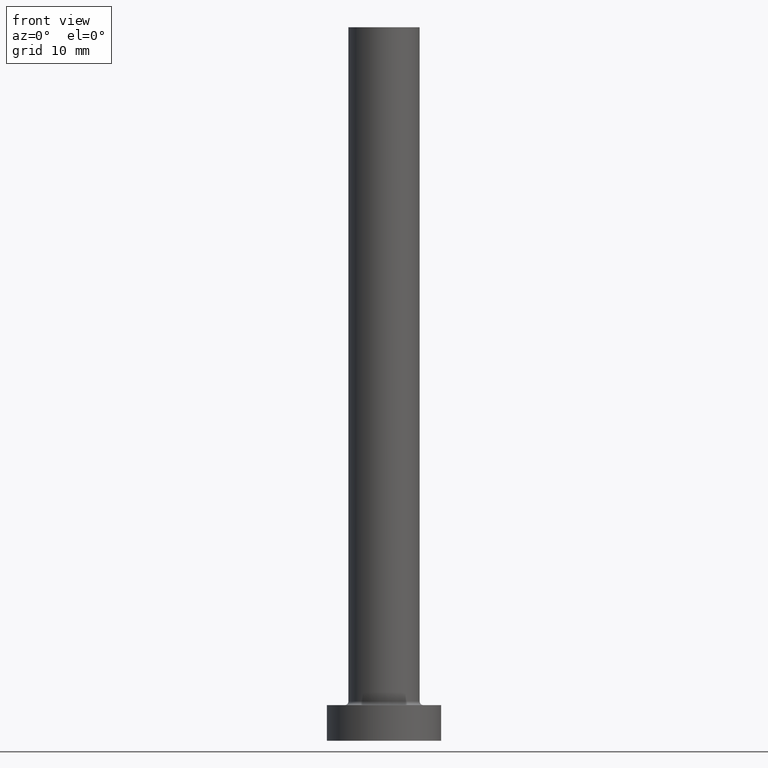
[diagram: clean part render]
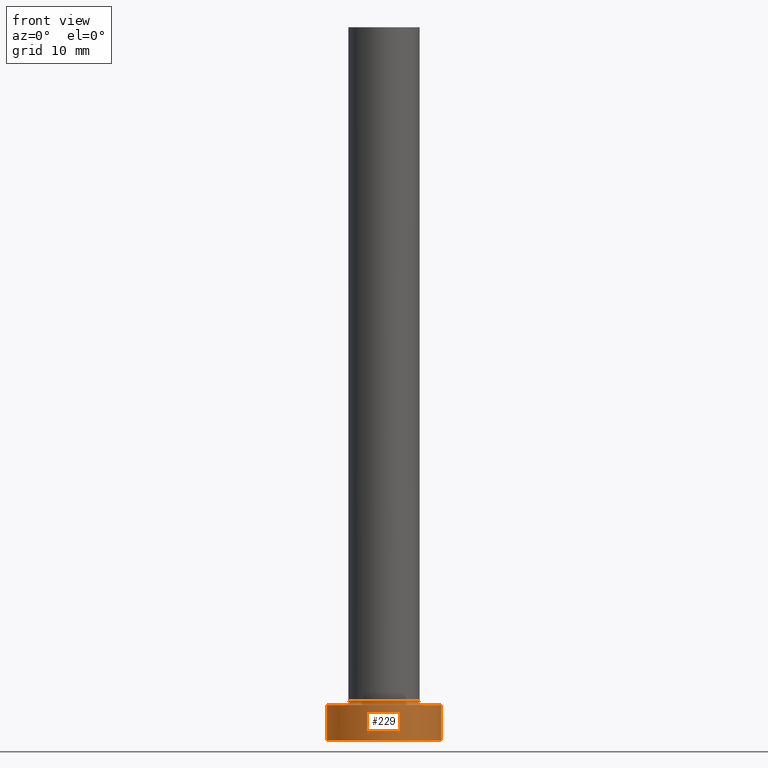
[diagram: same view with one face highlighted and labeled with its STEP entity id]
A machine part, front view. The second image highlights one B-rep face of the part: STEP entity #229.
In plain terms, the highlighted cylindrical surface (partial cylindrical patch) has radius 8 mm, axis along (-0, -0, -1).
Its self-contained STEP definition (entity closure, byte-faithful):
#8 = DIRECTION ( 'NONE',  ( 0.000000000000000000, 0.000000000000000000, 1.000000000000000000 ) ) ;
#26 = DIRECTION ( 'NONE',  ( -0.000000000000000000, -0.000000000000000000, -1.000000000000000000 ) ) ;
#38 = VECTOR ( 'NONE', #26, 1000.000000000000000 ) ;
#39 = VERTEX_POINT ( 'NONE', #262 ) ;
#41 = AXIS2_PLACEMENT_3D ( 'NONE', #247, #8, #329 ) ;
#43 = CARTESIAN_POINT ( 'NONE',  ( 8.000000000000000000, 9.797174393178825657E-16, 0.000000000000000000 ) ) ;
#67 = EDGE_CURVE ( 'NONE', #454, #434, #92, .T. ) ;
#75 = ORIENTED_EDGE ( 'NONE', *, *, #392, .T. ) ;
#87 = CARTESIAN_POINT ( 'NONE',  ( 8.000000000000000000, 9.797174393178825657E-16, 5.000000000000000000 ) ) ;
#92 = LINE ( 'NONE', #196, #38 ) ;
#104 = VECTOR ( 'NONE', #280, 1000.000000000000000 ) ;
#105 = DIRECTION ( 'NONE',  ( -0.000000000000000000, -0.000000000000000000, -1.000000000000000000 ) ) ;
#118 = CIRCLE ( 'NONE', #217, 8.000000000000000000 ) ;
#142 = DIRECTION ( 'NONE',  ( -1.000000000000000000, 0.000000000000000000, 0.000000000000000000 ) ) ;
#175 = CARTESIAN_POINT ( 'NONE',  ( 0.000000000000000000, 0.000000000000000000, 0.000000000000000000 ) ) ;
#196 = CARTESIAN_POINT ( 'NONE',  ( 8.000000000000000000, 9.797174393178825657E-16, 5.000000000000000000 ) ) ;
#217 = AXIS2_PLACEMENT_3D ( 'NONE', #175, #285, #420 ) ;
#219 = EDGE_CURVE ( 'NONE', #39, #434, #118, .T. ) ;
#229 = ADVANCED_FACE ( 'NONE', ( #461 ), #352, .T. ) ;
#245 = EDGE_CURVE ( 'NONE', #403, #454, #328, .T. ) ;
#247 = CARTESIAN_POINT ( 'NONE',  ( 0.000000000000000000, 0.000000000000000000, 5.000000000000000000 ) ) ;
#262 = CARTESIAN_POINT ( 'NONE',  ( -8.000000000000000000, 0.000000000000000000, 0.000000000000000000 ) ) ;
#266 = ORIENTED_EDGE ( 'NONE', *, *, #245, .F. ) ;
#280 = DIRECTION ( 'NONE',  ( -0.000000000000000000, -0.000000000000000000, -1.000000000000000000 ) ) ;
#285 = DIRECTION ( 'NONE',  ( 0.000000000000000000, 0.000000000000000000, 1.000000000000000000 ) ) ;
#318 = CARTESIAN_POINT ( 'NONE',  ( -8.000000000000000000, 0.000000000000000000, 5.000000000000000000 ) ) ;
#319 = CARTESIAN_POINT ( 'NONE',  ( -8.000000000000000000, 0.000000000000000000, 5.000000000000000000 ) ) ;
#323 = CARTESIAN_POINT ( 'NONE',  ( 0.000000000000000000, 0.000000000000000000, 5.000000000000000000 ) ) ;
#328 = CIRCLE ( 'NONE', #41, 8.000000000000000000 ) ;
#329 = DIRECTION ( 'NONE',  ( 1.000000000000000000, 0.000000000000000000, 0.000000000000000000 ) ) ;
#331 = ORIENTED_EDGE ( 'NONE', *, *, #67, .F. ) ;
#344 = ORIENTED_EDGE ( 'NONE', *, *, #219, .T. ) ;
#352 = CYLINDRICAL_SURFACE ( 'NONE', #425, 8.000000000000000000 ) ;
#388 = LINE ( 'NONE', #318, #104 ) ;
#390 = EDGE_LOOP ( 'NONE', ( #331, #266, #75, #344 ) ) ;
#392 = EDGE_CURVE ( 'NONE', #403, #39, #388, .T. ) ;
#403 = VERTEX_POINT ( 'NONE', #319 ) ;
#420 = DIRECTION ( 'NONE',  ( 1.000000000000000000, 0.000000000000000000, 0.000000000000000000 ) ) ;
#425 = AXIS2_PLACEMENT_3D ( 'NONE', #323, #105, #142 ) ;
#434 = VERTEX_POINT ( 'NONE', #43 ) ;
#454 = VERTEX_POINT ( 'NONE', #87 ) ;
#461 = FACE_OUTER_BOUND ( 'NONE', #390, .T. ) ;